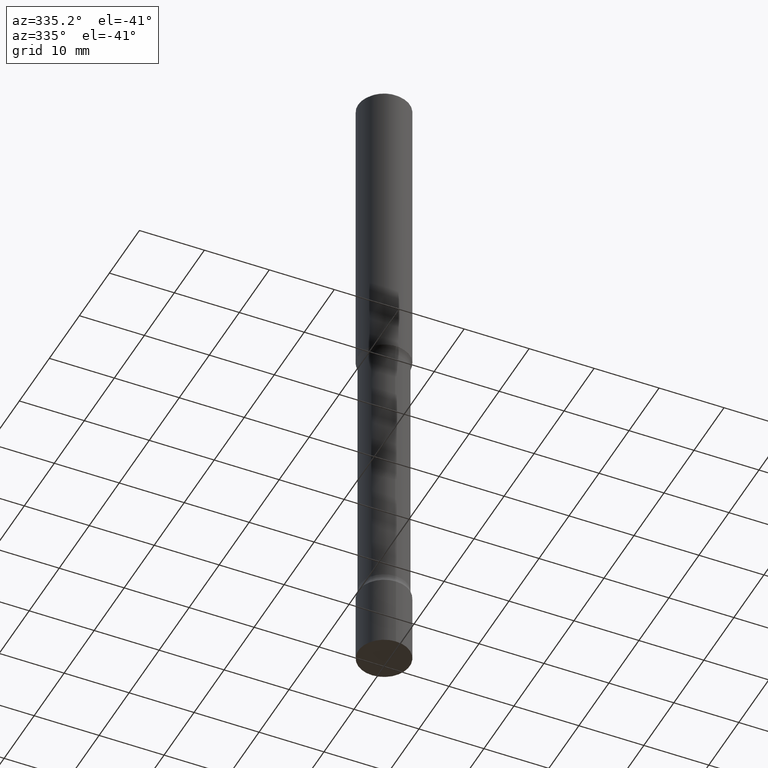
[diagram: clean part render]
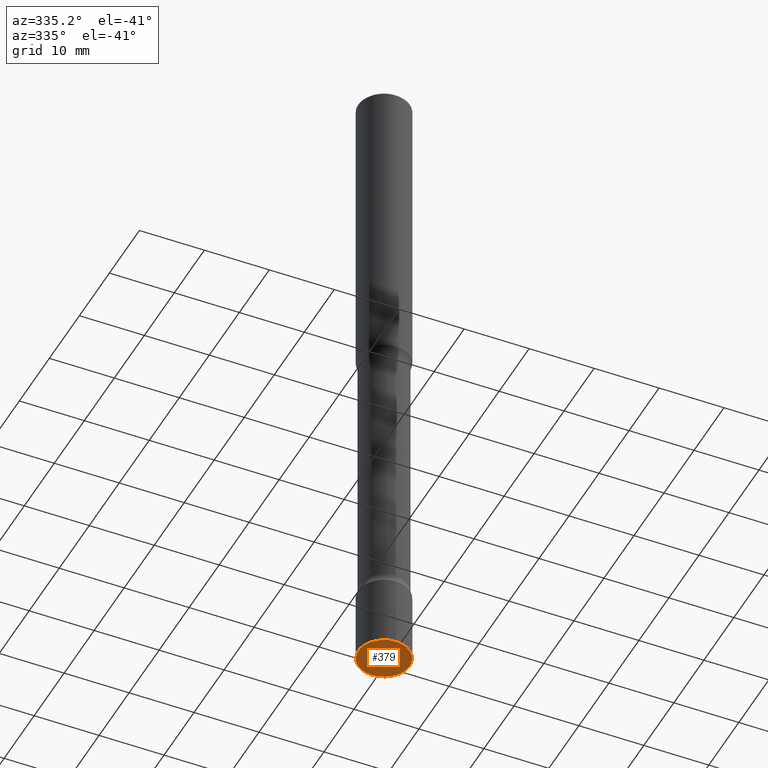
[diagram: same view with one face highlighted and labeled with its STEP entity id]
A machine part, auxiliary view. The second image highlights one B-rep face of the part: STEP entity #379.
In plain terms, the highlighted planar face has unit normal (0, -0, -1).
Its self-contained STEP definition (entity closure, byte-faithful):
#5 = DIRECTION ( 'NONE',  ( 2.445804309076295273E-29, -3.491000879607367329E-15, -1.000000000000000000 ) ) ;
#12 = FACE_OUTER_BOUND ( 'NONE', #62, .T. ) ;
#16 = CARTESIAN_POINT ( 'NONE',  ( -1.091087918388381552E-15, -0.1562500000000140166, -3.999999999999999556 ) ) ;
#25 = EDGE_CURVE ( 'NONE', #390, #95, #149, .T. ) ;
#32 = CARTESIAN_POINT ( 'NONE',  ( 9.783217236305181094E-29, -1.396400351842947089E-14, -4.000000000000000000 ) ) ;
#35 = CARTESIAN_POINT ( 'NONE',  ( 1.110223024625249034E-15, 0.1562499999999860667, -4.000000000000000888 ) ) ;
#62 = EDGE_LOOP ( 'NONE', ( #289, #254 ) ) ;
#95 = VERTEX_POINT ( 'NONE', #16 ) ;
#113 = DIRECTION ( 'NONE',  ( -6.982962677686266711E-15, -1.000000000000000000, 3.496765431890256131E-15 ) ) ;
#117 = DIRECTION ( 'NONE',  ( -2.445804309076295273E-29, 3.491000879607367723E-15, 1.000000000000000000 ) ) ;
#118 = CARTESIAN_POINT ( 'NONE',  ( 9.781875224740546387E-29, -1.396592535537258233E-14, -4.000000000000000000 ) ) ;
#139 = DIRECTION ( 'NONE',  ( -6.982962677686266711E-15, -1.000000000000000000, 3.496765431890256131E-15 ) ) ;
#149 = CIRCLE ( 'NONE', #439, 0.1562500000000000278 ) ;
#157 = CARTESIAN_POINT ( 'NONE',  ( 9.783217236305181094E-29, -1.396400351842947089E-14, -4.000000000000000000 ) ) ;
#195 = DIRECTION ( 'NONE',  ( 6.982962677686265922E-15, 1.000000000000000000, -3.491000879607367329E-15 ) ) ;
#244 = PLANE ( 'NONE',  #385 ) ;
#254 = ORIENTED_EDGE ( 'NONE', *, *, #25, .F. ) ;
#268 = AXIS2_PLACEMENT_3D ( 'NONE', #157, #419, #113 ) ;
#289 = ORIENTED_EDGE ( 'NONE', *, *, #486, .F. ) ;
#379 = ADVANCED_FACE ( 'NONE', ( #12 ), #244, .T. ) ;
#385 = AXIS2_PLACEMENT_3D ( 'NONE', #118, #5, #195 ) ;
#390 = VERTEX_POINT ( 'NONE', #35 ) ;
#408 = CIRCLE ( 'NONE', #268, 0.1562500000000000278 ) ;
#419 = DIRECTION ( 'NONE',  ( -2.445804309076295273E-29, 3.491000879607367723E-15, 1.000000000000000000 ) ) ;
#439 = AXIS2_PLACEMENT_3D ( 'NONE', #32, #117, #139 ) ;
#486 = EDGE_CURVE ( 'NONE', #95, #390, #408, .T. ) ;